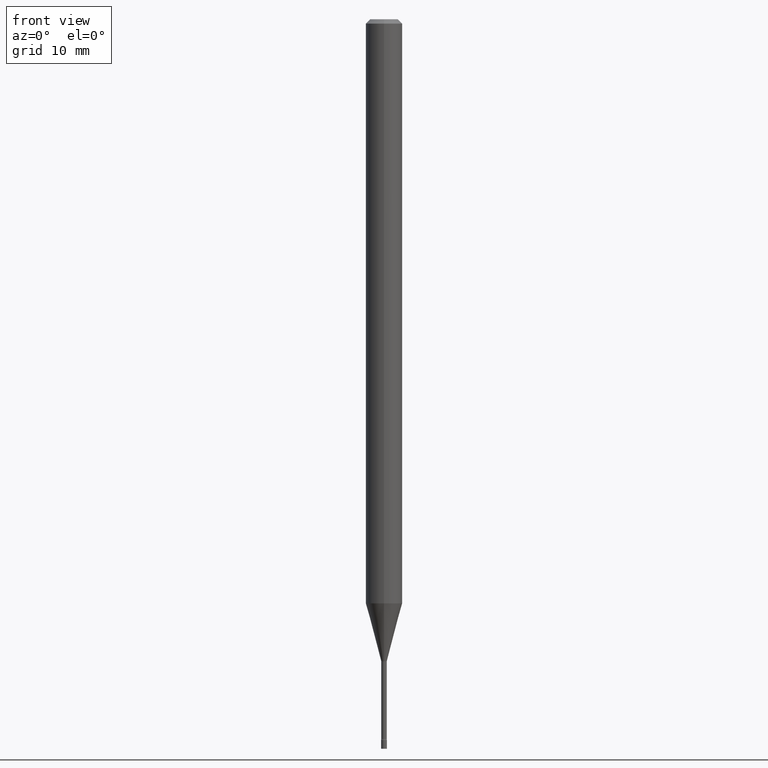
[diagram: clean part render]
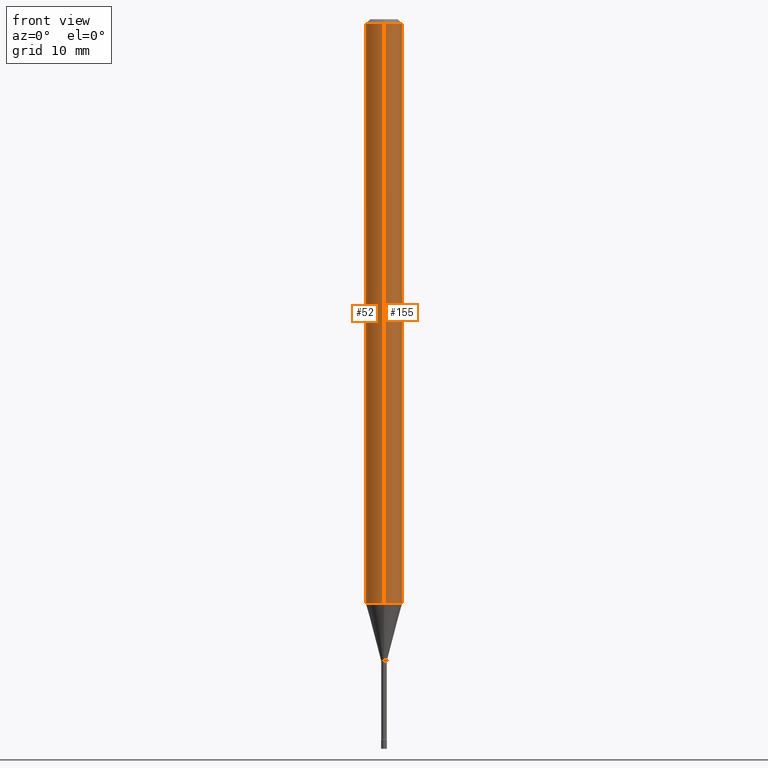
[diagram: same view with one multi-face feature highlighted, each face labeled with its STEP entity id]
A machine part, front view. The highlighted faces form ONE feature: a constant-radius fillet chain: 2 tangent blend faces with common blend radius 1.5875 mm. The faces share edges in the B-rep.
Their STEP definitions:
[1] entity #52 (Cylinder):
#6 = CIRCLE ( 'NONE', #159, 0.06250000000000000000 ) ;
#15 = DIRECTION ( 'NONE',  ( -2.445536542724447659E-29, 3.491384336263527933E-15, 1.000000000000000000 ) ) ;
#26 = EDGE_CURVE ( 'NONE', #308, #506, #307, .T. ) ;
#41 = CARTESIAN_POINT ( 'NONE',  ( 4.440892098501114269E-16, 0.06249999999999299866, -2.001828102118093256 ) ) ;
#45 = DIRECTION ( 'NONE',  ( -2.445536542724447659E-29, 3.491384336263527933E-15, 1.000000000000000000 ) ) ;
#52 = ADVANCED_FACE ( 'NONE', ( #264 ), #130, .T. ) ;
#66 = CARTESIAN_POINT ( 'NONE',  ( 4.440892098500625669E-16, 0.06250000000000000000, -2.182115210164704958E-16 ) ) ;
#68 = VERTEX_POINT ( 'NONE', #106 ) ;
#76 = ORIENTED_EDGE ( 'NONE', *, *, #233, .F. ) ;
#96 = DIRECTION ( 'NONE',  ( -6.982962677686265922E-15, -1.000000000000000000, 3.491384336263527933E-15 ) ) ;
#106 = CARTESIAN_POINT ( 'NONE',  ( -4.364351673553912750E-16, -0.06250000000000005551, -0.01499999999999981209 ) ) ;
#124 = CARTESIAN_POINT ( 'NONE',  ( 4.895543775982524061E-29, -6.989151279627256270E-15, -2.001828102118093256 ) ) ;
#125 = CIRCLE ( 'NONE', #404, 0.06250000000000000000 ) ;
#130 = CYLINDRICAL_SURFACE ( 'NONE', #488, 0.06250000000000000000 ) ;
#152 = DIRECTION ( 'NONE',  ( -2.445536542724447659E-29, 3.491384336263527933E-15, 1.000000000000000000 ) ) ;
#159 = AXIS2_PLACEMENT_3D ( 'NONE', #124, #152, #321 ) ;
#161 = CARTESIAN_POINT ( 'NONE',  ( 4.440892098501118214E-16, 0.06249999999999995143, -0.01500000000000024751 ) ) ;
#171 = EDGE_CURVE ( 'NONE', #308, #190, #6, .T. ) ;
#173 = DIRECTION ( 'NONE',  ( -2.445536542724447659E-29, 3.491384336263527933E-15, 1.000000000000000000 ) ) ;
#176 = VECTOR ( 'NONE', #173, 39.37007874015748143 ) ;
#190 = VERTEX_POINT ( 'NONE', #280 ) ;
#201 = LINE ( 'NONE', #360, #376 ) ;
#209 = ORIENTED_EDGE ( 'NONE', *, *, #171, .T. ) ;
#233 = EDGE_CURVE ( 'NONE', #506, #68, #125, .T. ) ;
#254 = CARTESIAN_POINT ( 'NONE',  ( 3.668304814086678845E-31, -5.237076504395302352E-17, -0.01500000000000003067 ) ) ;
#264 = FACE_OUTER_BOUND ( 'NONE', #312, .T. ) ;
#273 = ORIENTED_EDGE ( 'NONE', *, *, #486, .T. ) ;
#280 = CARTESIAN_POINT ( 'NONE',  ( -4.364351673553426614E-16, -0.06250000000000699441, -2.001828102118092811 ) ) ;
#289 = ORIENTED_EDGE ( 'NONE', *, *, #26, .F. ) ;
#307 = LINE ( 'NONE', #66, #176 ) ;
#308 = VERTEX_POINT ( 'NONE', #41 ) ;
#312 = EDGE_LOOP ( 'NONE', ( #289, #209, #273, #76 ) ) ;
#321 = DIRECTION ( 'NONE',  ( -6.982962677686265922E-15, -1.000000000000000000, 4.370956789862821150E-15 ) ) ;
#343 = DIRECTION ( 'NONE',  ( -2.445536542724447659E-29, 3.491384336263527933E-15, 1.000000000000000000 ) ) ;
#360 = CARTESIAN_POINT ( 'NONE',  ( -4.364351673553916201E-16, -0.06250000000000000000, 2.182115210164704958E-16 ) ) ;
#375 = CARTESIAN_POINT ( 'NONE',  ( 0.000000000000000000, 0.000000000000000000, 0.000000000000000000 ) ) ;
#376 = VECTOR ( 'NONE', #45, 39.37007874015748143 ) ;
#404 = AXIS2_PLACEMENT_3D ( 'NONE', #254, #343, #502 ) ;
#486 = EDGE_CURVE ( 'NONE', #190, #68, #201, .T. ) ;
#488 = AXIS2_PLACEMENT_3D ( 'NONE', #375, #15, #96 ) ;
#502 = DIRECTION ( 'NONE',  ( -6.982962677686265922E-15, -1.000000000000000000, 3.483106191921935554E-15 ) ) ;
#506 = VERTEX_POINT ( 'NONE', #161 ) ;
[2] entity #155 (Cylinder):
#10 = FACE_OUTER_BOUND ( 'NONE', #498, .T. ) ;
#26 = EDGE_CURVE ( 'NONE', #308, #506, #307, .T. ) ;
#28 = ORIENTED_EDGE ( 'NONE', *, *, #358, .F. ) ;
#35 = ORIENTED_EDGE ( 'NONE', *, *, #26, .T. ) ;
#39 = CARTESIAN_POINT ( 'NONE',  ( 0.000000000000000000, 0.000000000000000000, 0.000000000000000000 ) ) ;
#41 = CARTESIAN_POINT ( 'NONE',  ( 4.440892098501114269E-16, 0.06249999999999299866, -2.001828102118093256 ) ) ;
#45 = DIRECTION ( 'NONE',  ( -2.445536542724447659E-29, 3.491384336263527933E-15, 1.000000000000000000 ) ) ;
#66 = CARTESIAN_POINT ( 'NONE',  ( 4.440892098500625669E-16, 0.06250000000000000000, -2.182115210164704958E-16 ) ) ;
#68 = VERTEX_POINT ( 'NONE', #106 ) ;
#106 = CARTESIAN_POINT ( 'NONE',  ( -4.364351673553912750E-16, -0.06250000000000005551, -0.01499999999999981209 ) ) ;
#127 = DIRECTION ( 'NONE',  ( -2.445536542724447659E-29, 3.491384336263527933E-15, 1.000000000000000000 ) ) ;
#137 = ORIENTED_EDGE ( 'NONE', *, *, #486, .F. ) ;
#155 = ADVANCED_FACE ( 'NONE', ( #10 ), #372, .T. ) ;
#161 = CARTESIAN_POINT ( 'NONE',  ( 4.440892098501118214E-16, 0.06249999999999995143, -0.01500000000000024751 ) ) ;
#168 = DIRECTION ( 'NONE',  ( -6.982962677686265922E-15, -1.000000000000000000, 3.483106191921935554E-15 ) ) ;
#173 = DIRECTION ( 'NONE',  ( -2.445536542724447659E-29, 3.491384336263527933E-15, 1.000000000000000000 ) ) ;
#176 = VECTOR ( 'NONE', #173, 39.37007874015748143 ) ;
#187 = CIRCLE ( 'NONE', #274, 0.06250000000000000000 ) ;
#190 = VERTEX_POINT ( 'NONE', #280 ) ;
#201 = LINE ( 'NONE', #360, #376 ) ;
#203 = CARTESIAN_POINT ( 'NONE',  ( 3.668304814086678845E-31, -5.237076504395302352E-17, -0.01500000000000003067 ) ) ;
#238 = EDGE_CURVE ( 'NONE', #190, #308, #187, .T. ) ;
#246 = DIRECTION ( 'NONE',  ( -2.445536542724447659E-29, 3.491384336263527933E-15, 1.000000000000000000 ) ) ;
#274 = AXIS2_PLACEMENT_3D ( 'NONE', #460, #292, #454 ) ;
#280 = CARTESIAN_POINT ( 'NONE',  ( -4.364351673553426614E-16, -0.06250000000000699441, -2.001828102118092811 ) ) ;
#292 = DIRECTION ( 'NONE',  ( -2.445536542724447659E-29, 3.491384336263527933E-15, 1.000000000000000000 ) ) ;
#302 = AXIS2_PLACEMENT_3D ( 'NONE', #203, #127, #168 ) ;
#307 = LINE ( 'NONE', #66, #176 ) ;
#308 = VERTEX_POINT ( 'NONE', #41 ) ;
#349 = ORIENTED_EDGE ( 'NONE', *, *, #238, .T. ) ;
#358 = EDGE_CURVE ( 'NONE', #68, #506, #420, .T. ) ;
#360 = CARTESIAN_POINT ( 'NONE',  ( -4.364351673553916201E-16, -0.06250000000000000000, 2.182115210164704958E-16 ) ) ;
#372 = CYLINDRICAL_SURFACE ( 'NONE', #443, 0.06250000000000000000 ) ;
#376 = VECTOR ( 'NONE', #45, 39.37007874015748143 ) ;
#409 = DIRECTION ( 'NONE',  ( -6.982962677686265922E-15, -1.000000000000000000, 3.491384336263527933E-15 ) ) ;
#420 = CIRCLE ( 'NONE', #302, 0.06250000000000000000 ) ;
#443 = AXIS2_PLACEMENT_3D ( 'NONE', #39, #246, #409 ) ;
#454 = DIRECTION ( 'NONE',  ( -6.982962677686265922E-15, -1.000000000000000000, 4.370956789862821150E-15 ) ) ;
#460 = CARTESIAN_POINT ( 'NONE',  ( 4.895543775982524061E-29, -6.989151279627256270E-15, -2.001828102118093256 ) ) ;
#486 = EDGE_CURVE ( 'NONE', #190, #68, #201, .T. ) ;
#498 = EDGE_LOOP ( 'NONE', ( #349, #35, #28, #137 ) ) ;
#506 = VERTEX_POINT ( 'NONE', #161 ) ;